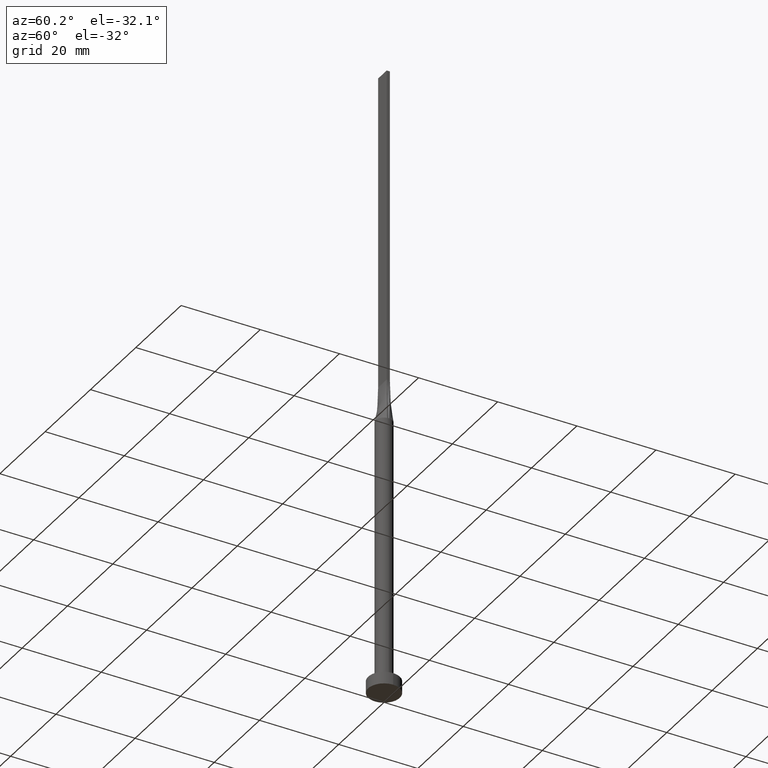
[diagram: clean part render]
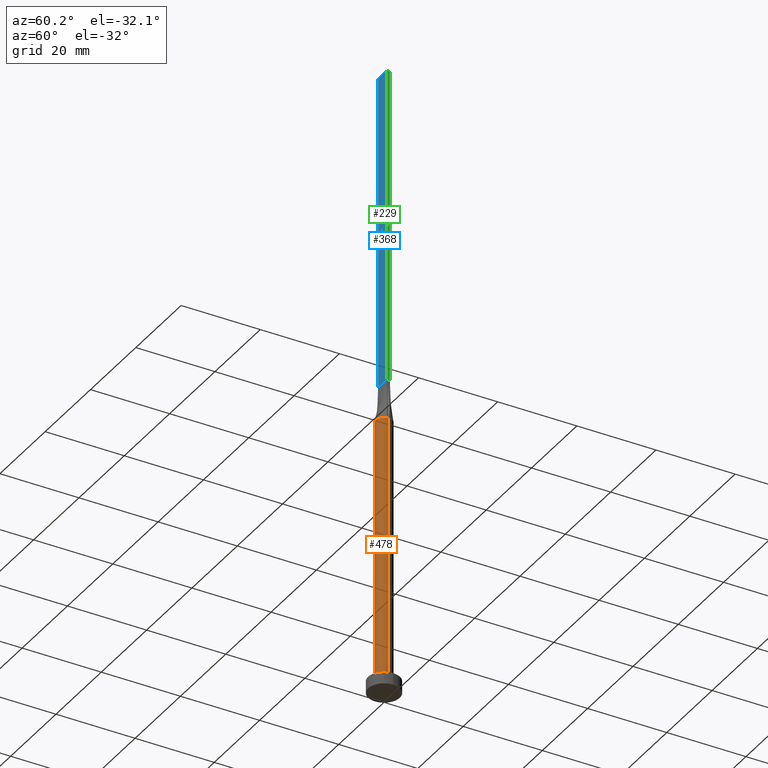
[diagram: same view with three faces highlighted in distinct colors, each labeled with its STEP entity id]
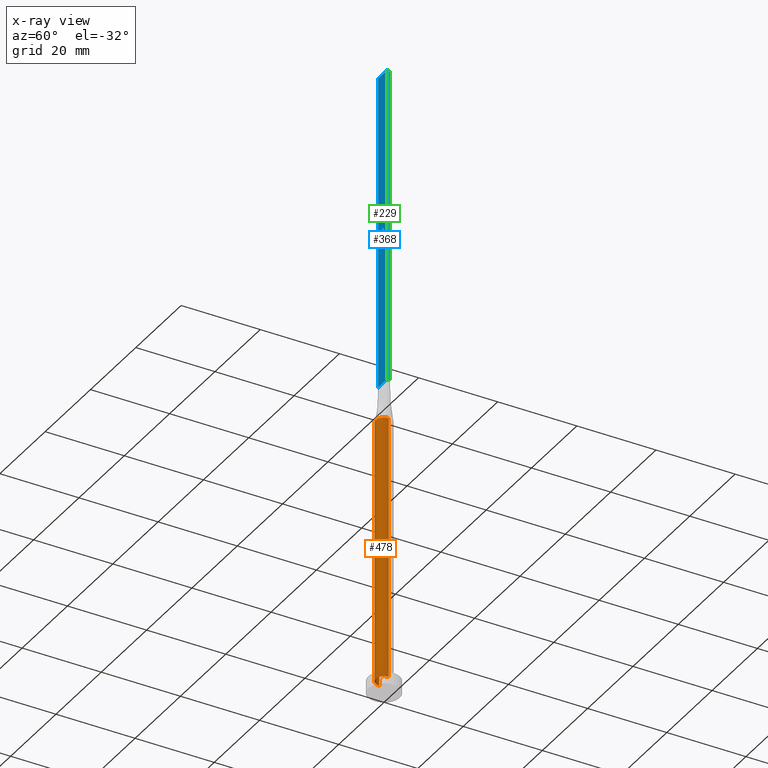
[diagram: x-ray of the same camera — body ghosted, the three highlighted faces saturated]
A machine part, auxiliary view with three faces highlighted in distinct colors.
The next image is the same camera in x-ray (body ghosted, the three faces saturated) — at least one of them is partly hidden behind the body in this view.
Their STEP definitions:

[orange] entity #478 — the highlighted cylindrical surface (edge-blend (fillet) strip) has radius 2.1 mm, axis along (-0, -0, -1).
#1 = EDGE_CURVE ( 'NONE', #187, #110, #105, .T. ) ;
#38 = CARTESIAN_POINT ( 'NONE',  ( 0.000000000000000000, 0.000000000000000000, 70.00000000000000000 ) ) ;
#44 = AXIS2_PLACEMENT_3D ( 'NONE', #513, #97, #297 ) ;
#62 = CARTESIAN_POINT ( 'NONE',  ( -2.100000000000000089, 0.000000000000000000, 70.00000000000000000 ) ) ;
#69 = ORIENTED_EDGE ( 'NONE', *, *, #257, .F. ) ;
#79 = CIRCLE ( 'NONE', #141, 2.100000000000000089 ) ;
#97 = DIRECTION ( 'NONE',  ( 0.000000000000000000, 0.000000000000000000, 1.000000000000000000 ) ) ;
#103 = DIRECTION ( 'NONE',  ( -0.000000000000000000, -0.000000000000000000, -1.000000000000000000 ) ) ;
#105 = CIRCLE ( 'NONE', #44, 2.100000000000000089 ) ;
#108 = LINE ( 'NONE', #278, #506 ) ;
#110 = VERTEX_POINT ( 'NONE', #206 ) ;
#113 = ORIENTED_EDGE ( 'NONE', *, *, #250, .F. ) ;
#122 = VERTEX_POINT ( 'NONE', #304 ) ;
#134 = DIRECTION ( 'NONE',  ( -1.000000000000000000, 0.000000000000000000, 0.000000000000000000 ) ) ;
#141 = AXIS2_PLACEMENT_3D ( 'NONE', #302, #481, #532 ) ;
#175 = CARTESIAN_POINT ( 'NONE',  ( -2.055145036631130129, -0.4326623253166036465, 70.00000000000000000 ) ) ;
#177 = CARTESIAN_POINT ( 'NONE',  ( 2.099758441344840243, 4.928843353830161703E-16, 70.00000000000000000 ) ) ;
#187 = VERTEX_POINT ( 'NONE', #339 ) ;
#192 = LINE ( 'NONE', #62, #213 ) ;
#194 = VERTEX_POINT ( 'NONE', #175 ) ;
#196 = DIRECTION ( 'NONE',  ( -0.000000000000000000, -0.000000000000000000, -1.000000000000000000 ) ) ;
#206 = CARTESIAN_POINT ( 'NONE',  ( 2.100000000000000089, 2.571758278209441957E-16, 3.000000000000000000 ) ) ;
#213 = VECTOR ( 'NONE', #196, 1000.000000000000000 ) ;
#214 = DIRECTION ( 'NONE',  ( 0.000000000000000000, 0.000000000000000000, 1.000000000000000000 ) ) ;
#215 = DIRECTION ( 'NONE',  ( 0.000000000000000000, 0.000000000000000000, 1.000000000000000000 ) ) ;
#223 = CARTESIAN_POINT ( 'NONE',  ( 2.055161022591414977, -0.4326655822303633325, 70.00000000000000000 ) ) ;
#250 = EDGE_CURVE ( 'NONE', #122, #194, #314, .T. ) ;
#257 = EDGE_CURVE ( 'NONE', #194, #335, #79, .T. ) ;
#273 = AXIS2_PLACEMENT_3D ( 'NONE', #38, #214, #572 ) ;
#278 = CARTESIAN_POINT ( 'NONE',  ( 2.100000000000000089, 2.571758278209441957E-16, 70.00000000000000000 ) ) ;
#290 = CIRCLE ( 'NONE', #545, 2.100000000000000089 ) ;
#297 = DIRECTION ( 'NONE',  ( 1.000000000000000000, 0.000000000000000000, 0.000000000000000000 ) ) ;
#302 = CARTESIAN_POINT ( 'NONE',  ( 0.000000000000000000, 0.000000000000000000, 70.00000000000000000 ) ) ;
#304 = CARTESIAN_POINT ( 'NONE',  ( -2.099758441344840243, -1.448674240509545331E-15, 70.00000000000000000 ) ) ;
#312 = FACE_OUTER_BOUND ( 'NONE', #473, .T. ) ;
#313 = EDGE_CURVE ( 'NONE', #335, #391, #290, .T. ) ;
#314 = CIRCLE ( 'NONE', #273, 2.100000000000000089 ) ;
#335 = VERTEX_POINT ( 'NONE', #223 ) ;
#339 = CARTESIAN_POINT ( 'NONE',  ( -2.100000000000000089, 0.000000000000000000, 3.000000000000000000 ) ) ;
#340 = ORIENTED_EDGE ( 'NONE', *, *, #1, .T. ) ;
#351 = DIRECTION ( 'NONE',  ( 1.000000000000000000, -8.881784197001252323E-16, 0.000000000000000000 ) ) ;
#373 = ORIENTED_EDGE ( 'NONE', *, *, #557, .T. ) ;
#391 = VERTEX_POINT ( 'NONE', #177 ) ;
#440 = AXIS2_PLACEMENT_3D ( 'NONE', #454, #491, #134 ) ;
#441 = CARTESIAN_POINT ( 'NONE',  ( 0.000000000000000000, 0.000000000000000000, 70.00000000000000000 ) ) ;
#454 = CARTESIAN_POINT ( 'NONE',  ( 0.000000000000000000, 0.000000000000000000, 70.00000000000000000 ) ) ;
#473 = EDGE_LOOP ( 'NONE', ( #566, #474, #69, #113, #373, #340 ) ) ;
#474 = ORIENTED_EDGE ( 'NONE', *, *, #313, .F. ) ;
#478 = ADVANCED_FACE ( 'NONE', ( #312 ), #536, .T. ) ;
#481 = DIRECTION ( 'NONE',  ( 0.000000000000000000, 0.000000000000000000, 1.000000000000000000 ) ) ;
#491 = DIRECTION ( 'NONE',  ( -0.000000000000000000, -0.000000000000000000, -1.000000000000000000 ) ) ;
#506 = VECTOR ( 'NONE', #103, 1000.000000000000000 ) ;
#513 = CARTESIAN_POINT ( 'NONE',  ( 0.000000000000000000, 0.000000000000000000, 3.000000000000000000 ) ) ;
#530 = EDGE_CURVE ( 'NONE', #391, #110, #108, .T. ) ;
#532 = DIRECTION ( 'NONE',  ( 1.000000000000000000, 0.000000000000000000, 0.000000000000000000 ) ) ;
#536 = CYLINDRICAL_SURFACE ( 'NONE', #440, 2.100000000000000089 ) ;
#545 = AXIS2_PLACEMENT_3D ( 'NONE', #441, #215, #351 ) ;
#557 = EDGE_CURVE ( 'NONE', #122, #187, #192, .T. ) ;
#566 = ORIENTED_EDGE ( 'NONE', *, *, #530, .F. ) ;
#572 = DIRECTION ( 'NONE',  ( 1.000000000000000000, 0.000000000000000000, 0.000000000000000000 ) ) ;

[blue] entity #368 — the highlighted planar face has unit normal (0, 1, -0).
#35 = VERTEX_POINT ( 'NONE', #467 ) ;
#36 = VECTOR ( 'NONE', #74, 1000.000000000000000 ) ;
#50 = EDGE_CURVE ( 'NONE', #35, #152, #66, .T. ) ;
#66 = LINE ( 'NONE', #518, #36 ) ;
#74 = DIRECTION ( 'NONE',  ( 1.000000000000000000, -5.706327223607920020E-17, 0.000000000000000000 ) ) ;
#98 = EDGE_CURVE ( 'NONE', #152, #118, #167, .T. ) ;
#118 = VERTEX_POINT ( 'NONE', #522 ) ;
#119 = AXIS2_PLACEMENT_3D ( 'NONE', #217, #396, #176 ) ;
#151 = LINE ( 'NONE', #457, #182 ) ;
#152 = VERTEX_POINT ( 'NONE', #436 ) ;
#157 = EDGE_LOOP ( 'NONE', ( #281, #245, #248, #512 ) ) ;
#167 = LINE ( 'NONE', #560, #438 ) ;
#176 = DIRECTION ( 'NONE',  ( -1.000000000000000000, 5.706327223607918787E-17, 0.000000000000000000 ) ) ;
#182 = VECTOR ( 'NONE', #325, 1000.000000000000000 ) ;
#217 = CARTESIAN_POINT ( 'NONE',  ( -1.899999999999999911, -0.3999999999999995781, 160.0000000000000000 ) ) ;
#231 = DIRECTION ( 'NONE',  ( -0.000000000000000000, -0.000000000000000000, -1.000000000000000000 ) ) ;
#245 = ORIENTED_EDGE ( 'NONE', *, *, #98, .F. ) ;
#248 = ORIENTED_EDGE ( 'NONE', *, *, #50, .F. ) ;
#255 = CARTESIAN_POINT ( 'NONE',  ( -1.899999999999999911, -0.3999999999999995781, 80.00000000000000000 ) ) ;
#281 = ORIENTED_EDGE ( 'NONE', *, *, #456, .T. ) ;
#293 = VERTEX_POINT ( 'NONE', #255 ) ;
#308 = VECTOR ( 'NONE', #344, 1000.000000000000000 ) ;
#325 = DIRECTION ( 'NONE',  ( 1.000000000000000000, -5.706327223607918787E-17, 0.000000000000000000 ) ) ;
#344 = DIRECTION ( 'NONE',  ( -0.000000000000000000, -0.000000000000000000, -1.000000000000000000 ) ) ;
#358 = EDGE_CURVE ( 'NONE', #35, #293, #445, .T. ) ;
#368 = ADVANCED_FACE ( 'NONE', ( #487 ), #574, .F. ) ;
#396 = DIRECTION ( 'NONE',  ( 5.706327223607918787E-17, 1.000000000000000000, -0.000000000000000000 ) ) ;
#436 = CARTESIAN_POINT ( 'NONE',  ( 1.899999999999999023, -0.3999999999999998002, 160.0000000000000000 ) ) ;
#438 = VECTOR ( 'NONE', #231, 1000.000000000000000 ) ;
#443 = CARTESIAN_POINT ( 'NONE',  ( -1.899999999999999911, -0.3999999999999995781, 160.0000000000000000 ) ) ;
#445 = LINE ( 'NONE', #443, #308 ) ;
#456 = EDGE_CURVE ( 'NONE', #293, #118, #151, .T. ) ;
#457 = CARTESIAN_POINT ( 'NONE',  ( -1.899999999999999911, -0.3999999999999995781, 80.00000000000000000 ) ) ;
#467 = CARTESIAN_POINT ( 'NONE',  ( -1.899999999999999911, -0.3999999999999995781, 160.0000000000000000 ) ) ;
#487 = FACE_OUTER_BOUND ( 'NONE', #157, .T. ) ;
#512 = ORIENTED_EDGE ( 'NONE', *, *, #358, .T. ) ;
#518 = CARTESIAN_POINT ( 'NONE',  ( -1.899999999999999911, -0.3999999999999995781, 160.0000000000000000 ) ) ;
#522 = CARTESIAN_POINT ( 'NONE',  ( 1.899999999999999023, -0.3999999999999998002, 80.00000000000000000 ) ) ;
#560 = CARTESIAN_POINT ( 'NONE',  ( 1.899999999999999023, -0.3999999999999998002, 160.0000000000000000 ) ) ;
#574 = PLANE ( 'NONE',  #119 ) ;

[green] entity #229 — the highlighted planar face has unit normal (-1, 0, 0).
#3 = AXIS2_PLACEMENT_3D ( 'NONE', #476, #127, #439 ) ;
#16 = ORIENTED_EDGE ( 'NONE', *, *, #98, .T. ) ;
#21 = DIRECTION ( 'NONE',  ( 8.131516293641283255E-16, 1.000000000000000000, 0.000000000000000000 ) ) ;
#71 = CARTESIAN_POINT ( 'NONE',  ( 1.899999999999999023, -0.3999999999999998002, 160.0000000000000000 ) ) ;
#83 = DIRECTION ( 'NONE',  ( -2.710505431213761085E-16, 1.000000000000000000, -0.000000000000000000 ) ) ;
#87 = EDGE_CURVE ( 'NONE', #152, #524, #381, .T. ) ;
#98 = EDGE_CURVE ( 'NONE', #152, #118, #167, .T. ) ;
#118 = VERTEX_POINT ( 'NONE', #522 ) ;
#127 = DIRECTION ( 'NONE',  ( -1.000000000000000000, 8.131516293641283255E-16, 0.000000000000000000 ) ) ;
#145 = EDGE_CURVE ( 'NONE', #118, #202, #169, .T. ) ;
#147 = CARTESIAN_POINT ( 'NONE',  ( 1.899999999999999689, 0.4000000000000002442, 160.0000000000000000 ) ) ;
#152 = VERTEX_POINT ( 'NONE', #436 ) ;
#164 = PLANE ( 'NONE',  #3 ) ;
#167 = LINE ( 'NONE', #560, #438 ) ;
#169 = LINE ( 'NONE', #216, #253 ) ;
#202 = VERTEX_POINT ( 'NONE', #444 ) ;
#216 = CARTESIAN_POINT ( 'NONE',  ( 1.899999999999999689, 0.4000000000000002442, 80.00000000000000000 ) ) ;
#229 = ADVANCED_FACE ( 'NONE', ( #567 ), #164, .F. ) ;
#231 = DIRECTION ( 'NONE',  ( -0.000000000000000000, -0.000000000000000000, -1.000000000000000000 ) ) ;
#253 = VECTOR ( 'NONE', #83, 1000.000000000000000 ) ;
#301 = EDGE_CURVE ( 'NONE', #524, #202, #484, .T. ) ;
#305 = CARTESIAN_POINT ( 'NONE',  ( 1.899999999999999689, 0.4000000000000002442, 160.0000000000000000 ) ) ;
#324 = ORIENTED_EDGE ( 'NONE', *, *, #301, .F. ) ;
#331 = ORIENTED_EDGE ( 'NONE', *, *, #87, .F. ) ;
#381 = LINE ( 'NONE', #71, #412 ) ;
#385 = ORIENTED_EDGE ( 'NONE', *, *, #145, .T. ) ;
#394 = DIRECTION ( 'NONE',  ( -0.000000000000000000, -0.000000000000000000, -1.000000000000000000 ) ) ;
#412 = VECTOR ( 'NONE', #21, 1000.000000000000000 ) ;
#423 = EDGE_LOOP ( 'NONE', ( #385, #324, #331, #16 ) ) ;
#436 = CARTESIAN_POINT ( 'NONE',  ( 1.899999999999999023, -0.3999999999999998002, 160.0000000000000000 ) ) ;
#438 = VECTOR ( 'NONE', #231, 1000.000000000000000 ) ;
#439 = DIRECTION ( 'NONE',  ( -8.131516293641283255E-16, -1.000000000000000000, 0.000000000000000000 ) ) ;
#444 = CARTESIAN_POINT ( 'NONE',  ( 1.899999999999999689, 0.4000000000000002442, 80.00000000000000000 ) ) ;
#476 = CARTESIAN_POINT ( 'NONE',  ( 1.899999999999999023, -0.3999999999999998002, 160.0000000000000000 ) ) ;
#484 = LINE ( 'NONE', #305, #537 ) ;
#522 = CARTESIAN_POINT ( 'NONE',  ( 1.899999999999999023, -0.3999999999999998002, 80.00000000000000000 ) ) ;
#524 = VERTEX_POINT ( 'NONE', #147 ) ;
#537 = VECTOR ( 'NONE', #394, 1000.000000000000000 ) ;
#560 = CARTESIAN_POINT ( 'NONE',  ( 1.899999999999999023, -0.3999999999999998002, 160.0000000000000000 ) ) ;
#567 = FACE_OUTER_BOUND ( 'NONE', #423, .T. ) ;